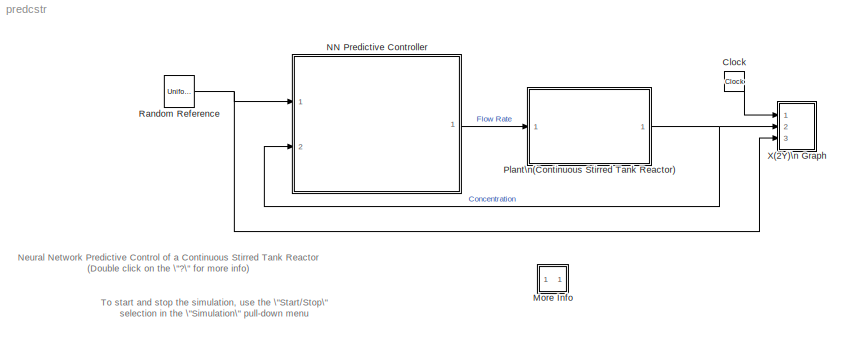
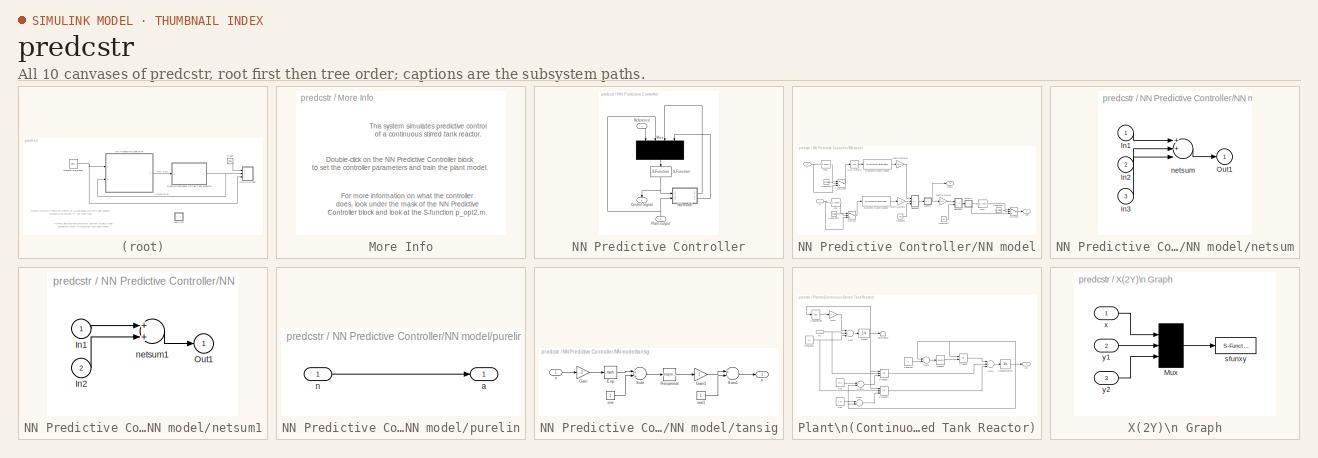
[diagram: thumbnail index - all 10 canvases of the model, root first then tree order]
MODEL predcstr
KIND model
BLOCK [Clock] Clock
  SID = 1
BLOCK [SubSystem] More Info
  Ports = []
  RequestExecContextInheritance = off
  SID = 2
  Variant = off
BLOCK [SubSystem] NN Predictive Controller
  OpenFcn = nncontrolutil('nnpredict','',gcbh,gcb);
  Ports = [2, 1]
  RequestExecContextInheritance = off
  SID = 7
  Variant = off
BLOCK [Outport] NN Predictive Controller/Control Signal
  IconDisplay = Port number
  SID = 59
BLOCK [Mux] NN Predictive Controller/Mux
  DisplayOption = signals
  Ports = [4, 1]
  SID = 10
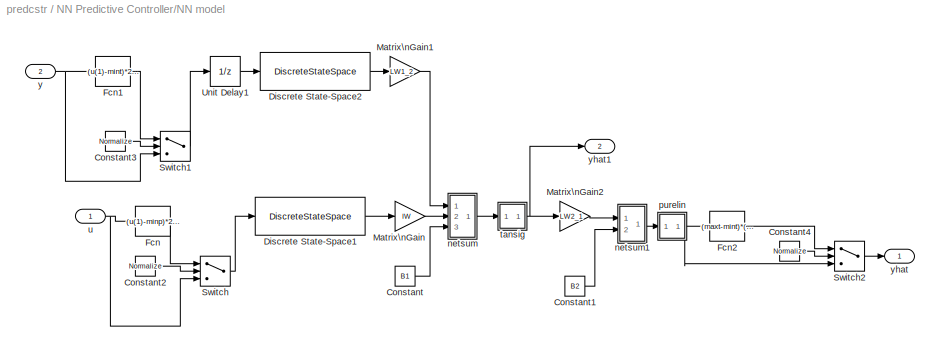
BLOCK [SubSystem] NN Predictive Controller/NN model
  Ports = [2, 2]
  RequestExecContextInheritance = off
  SID = 11
  Variant = off
BLOCK [Constant] NN Predictive Controller/NN model/Constant
  SID = 14
  Value = B1
BLOCK [Constant] NN Predictive Controller/NN model/Constant1
  SID = 15
  Value = B2
BLOCK [Constant] NN Predictive Controller/NN model/Constant2
  SID = 16
  Value = Normalize
BLOCK [Constant] NN Predictive Controller/NN model/Constant3
  SID = 17
  Value = Normalize
BLOCK [Constant] NN Predictive Controller/NN model/Constant4
  SID = 18
  Value = Normalize
BLOCK [DiscreteStateSpace] NN Predictive Controller/NN model/Discrete State-Space1
  A = [0 zeros(1,Ni-2);eye(Ni-2,Ni-1)]
  B = [zeros(double(Ni==1));eye(Ni-1,1)]
  C = [0 zeros(1,Ni-2);eye(Ni-1,Ni-1)]
  D = eye(Ni,1)
  SID = 19
  SampleTime = Ts
BLOCK [DiscreteStateSpace] NN Predictive Controller/NN model/Discrete State-Space2
  A = [0 zeros(1,Nj-2);eye(Nj-2,Nj-1)]
  B = [zeros(double(Nj==1));eye(Nj-1,1)]
  C = [0 zeros(1,Nj-2);eye(Nj-1,Nj-1)]
  D = eye(Nj,1)
  SID = 20
  SampleTime = Ts
BLOCK [Fcn] NN Predictive Controller/NN model/Fcn
  Expr = (u(1)-minp)*2/(maxp-minp) - 1
  SID = 21
BLOCK [Fcn] NN Predictive Controller/NN model/Fcn1
  Expr = (u(1)-mint)*2/(maxt-mint) - 1
  SID = 22
BLOCK [Fcn] NN Predictive Controller/NN model/Fcn2
  Expr = (maxt-mint)*(u(1)+1)/2 + mint
  SID = 23
BLOCK [Gain] NN Predictive Controller/NN model/Matrix\nGain
  Gain = IW
  Multiplication = Matrix(K*u)
  SID = 24
BLOCK [Gain] NN Predictive Controller/NN model/Matrix\nGain1
  Gain = LW1_2
  Multiplication = Matrix(K*u)
  SID = 25
BLOCK [Gain] NN Predictive Controller/NN model/Matrix\nGain2
  Gain = LW2_1
  Multiplication = Matrix(K*u)
  SID = 26
BLOCK [Switch] NN Predictive Controller/NN model/Switch
  SID = 27
  Threshold = 0.5
  ZeroCross = off
BLOCK [Switch] NN Predictive Controller/NN model/Switch1
  SID = 28
  Threshold = 0.5
  ZeroCross = off
BLOCK [Switch] NN Predictive Controller/NN model/Switch2
  SID = 29
  Threshold = 0.5
  ZeroCross = off
BLOCK [UnitDelay] NN Predictive Controller/NN model/Unit Delay1
  SID = 30
  SampleTime = Ts
BLOCK [SubSystem] NN Predictive Controller/NN model/netsum
  Ports = [3, 1]
  RequestExecContextInheritance = off
  SID = 31
  Variant = off
BLOCK [Inport] NN Predictive Controller/NN model/netsum/In1
  IconDisplay = Port number
  SID = 32
BLOCK [Inport] NN Predictive Controller/NN model/netsum/In2
  IconDisplay = Port number
  Port = 2
  SID = 33
BLOCK [Inport] NN Predictive Controller/NN model/netsum/In3
  IconDisplay = Port number
  Port = 3
  SID = 34
BLOCK [Outport] NN Predictive Controller/NN model/netsum/Out1
  IconDisplay = Port number
  SID = 36
BLOCK [Sum] NN Predictive Controller/NN model/netsum/netsum
  Inputs = 3
  Ports = [3, 1]
  SID = 35
BLOCK [SubSystem] NN Predictive Controller/NN model/netsum1
  Ports = [2, 1]
  RequestExecContextInheritance = off
  SID = 37
  Variant = off
BLOCK [Inport] NN Predictive Controller/NN model/netsum1/In1
  IconDisplay = Port number
  SID = 38
BLOCK [Inport] NN Predictive Controller/NN model/netsum1/In2
  IconDisplay = Port number
  Port = 2
  SID = 39
BLOCK [Outport] NN Predictive Controller/NN model/netsum1/Out1
  IconDisplay = Port number
  SID = 41
BLOCK [Sum] NN Predictive Controller/NN model/netsum1/netsum1
  Inputs = 2
  Ports = [2, 1]
  SID = 40
BLOCK [SubSystem] NN Predictive Controller/NN model/purelin
  Ports = [1, 1]
  RequestExecContextInheritance = off
  SID = 42
  Variant = off
BLOCK [Outport] NN Predictive Controller/NN model/purelin/a
  IconDisplay = Port number
  SID = 44
BLOCK [Inport] NN Predictive Controller/NN model/purelin/n
  IconDisplay = Port number
  SID = 43
BLOCK [SubSystem] NN Predictive Controller/NN model/tansig
  Ports = [1, 1]
  RequestExecContextInheritance = off
  SID = 45
  Variant = off
BLOCK [Math] NN Predictive Controller/NN model/tansig/Exp
  Ports = [1, 1]
  SID = 47
BLOCK [Gain] NN Predictive Controller/NN model/tansig/Gain
  Gain = -2
  SID = 48
BLOCK [Gain] NN Predictive Controller/NN model/tansig/Gain1
  Gain = 2
  SID = 49
BLOCK [Math] NN Predictive Controller/NN model/tansig/Reciprocal
  Operator = reciprocal
  Ports = [1, 1]
  SID = 50
BLOCK [Sum] NN Predictive Controller/NN model/tansig/Sum
  Ports = [2, 1]
  SID = 51
BLOCK [Sum] NN Predictive Controller/NN model/tansig/Sum1
  Inputs = +-
  Ports = [2, 1]
  SID = 52
BLOCK [Outport] NN Predictive Controller/NN model/tansig/a
  IconDisplay = Port number
  SID = 55
BLOCK [Inport] NN Predictive Controller/NN model/tansig/n
  IconDisplay = Port number
  SID = 46
BLOCK [Constant] NN Predictive Controller/NN model/tansig/one
  SID = 53
BLOCK [Constant] NN Predictive Controller/NN model/tansig/one1
  SID = 54
BLOCK [Inport] NN Predictive Controller/NN model/u
  IconDisplay = Port number
  SID = 12
BLOCK [Inport] NN Predictive Controller/NN model/y
  IconDisplay = Port number
  Port = 2
  SID = 13
BLOCK [Outport] NN Predictive Controller/NN model/yhat
  IconDisplay = Port number
  SID = 56
BLOCK [Outport] NN Predictive Controller/NN model/yhat1
  IconDisplay = Port number
  Port = 2
  SID = 57
BLOCK [Inport] NN Predictive Controller/Plant output
  IconDisplay = Port number
  Port = 2
  SID = 9
BLOCK [Inport] NN Predictive Controller/Reference
  IconDisplay = Port number
  SID = 8
BLOCK [S-Function] NN Predictive Controller/S-Function
  EnableBusSupport = off
  FunctionName = predopt
  Parameters = N2,Ts,Nu,maxiter,csrchfun,rho,alpha,S1,IW,LW1_2,LW2_1,B1,B2,Ni,Nj,min_i,max_i,minp,maxp,mint,maxt,Normalize
  Ports = [1, 1]
  SFunctionDeploymentMode = off
  SID = 58
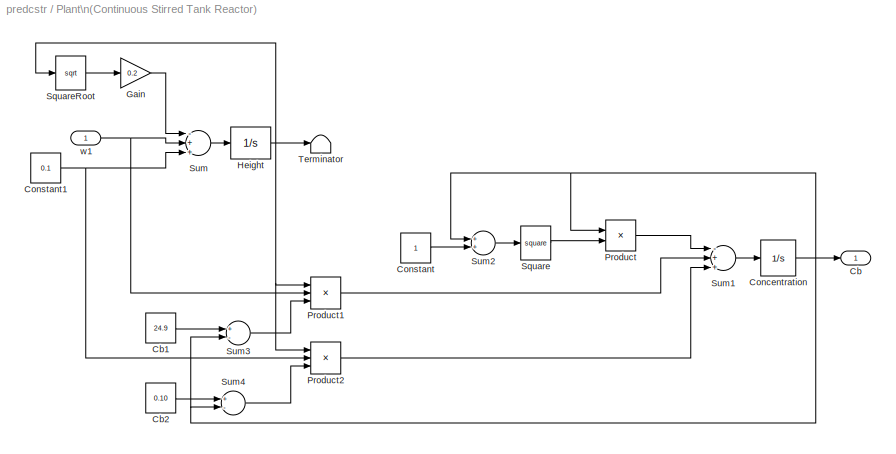
BLOCK [SubSystem] Plant\n(Continuous Stirred Tank Reactor)
  Ports = [1, 1]
  RequestExecContextInheritance = off
  SID = 60
  Variant = off
BLOCK [Outport] Plant\n(Continuous Stirred Tank Reactor)/Cb
  IconDisplay = Port number
  SID = 80
BLOCK [Constant] Plant\n(Continuous Stirred Tank Reactor)/Cb1
  SID = 62
  Value = 24.9
BLOCK [Constant] Plant\n(Continuous Stirred Tank Reactor)/Cb2
  SID = 63
  Value = 0.10
BLOCK [Integrator] Plant\n(Continuous Stirred Tank Reactor)/Concentration
  InitialCondition = 22
  LowerSaturationLimit = 0
  Ports = [1, 1]
  SID = 64
  ZeroCross = off
BLOCK [Constant] Plant\n(Continuous Stirred Tank Reactor)/Constant
  SID = 65
BLOCK [Constant] Plant\n(Continuous Stirred Tank Reactor)/Constant1
  SID = 66
  Value = 0.1
BLOCK [Gain] Plant\n(Continuous Stirred Tank Reactor)/Gain
  Gain = 0.2
  SID = 67
BLOCK [Integrator] Plant\n(Continuous Stirred Tank Reactor)/Height
  InitialCondition = 30
  LimitOutput = on
  LowerSaturationLimit = 1
  Ports = [1, 1]
  SID = 68
  ZeroCross = off
BLOCK [Product] Plant\n(Continuous Stirred Tank Reactor)/Product
  Inputs = */
  Ports = [2, 1]
  RndMeth = Floor
  SID = 69
BLOCK [Product] Plant\n(Continuous Stirred Tank Reactor)/Product1
  Inputs = /**
  Ports = [3, 1]
  RndMeth = Floor
  SID = 70
BLOCK [Product] Plant\n(Continuous Stirred Tank Reactor)/Product2
  Inputs = /**
  Ports = [3, 1]
  RndMeth = Floor
  SID = 71
BLOCK [Math] Plant\n(Continuous Stirred Tank Reactor)/Square
  Operator = square
  Ports = [1, 1]
  SID = 72
BLOCK [Math] Plant\n(Continuous Stirred Tank Reactor)/SquareRoot
  Operator = sqrt
  Ports = [1, 1]
  SID = 73
BLOCK [Sum] Plant\n(Continuous Stirred Tank Reactor)/Sum
  Inputs = -++
  Ports = [3, 1]
  SID = 74
BLOCK [Sum] Plant\n(Continuous Stirred Tank Reactor)/Sum1
  Inputs = -++
  Ports = [3, 1]
  SID = 75
BLOCK [Sum] Plant\n(Continuous Stirred Tank Reactor)/Sum2
  Ports = [2, 1]
  SID = 76
BLOCK [Sum] Plant\n(Continuous Stirred Tank Reactor)/Sum3
  Inputs = +-
  Ports = [2, 1]
  SID = 77
BLOCK [Sum] Plant\n(Continuous Stirred Tank Reactor)/Sum4
  Inputs = +-
  Ports = [2, 1]
  SID = 78
BLOCK [Terminator] Plant\n(Continuous Stirred Tank Reactor)/Terminator
  SID = 79
BLOCK [Inport] Plant\n(Continuous Stirred Tank Reactor)/w1
  IconDisplay = Port number
  SID = 61
BLOCK [UniformRandomNumber] Random Reference
  Maximum = 23
  Minimum = 20
  SID = 81
  SampleTime = 20
  Seed = round(now)
BLOCK [SubSystem] X(2Y)\n Graph
  CopyFcn = sfunxy2([],[],[],'CopyBlock')
  DeleteFcn = sfunxy2([],[],[],'DeleteBlock')
  LoadFcn = sfunxy2([],[],[],'LoadBlock')
  NameChangeFcn = sfunxy2([],[],[],'NameChange')
  Ports = [3]
  RequestExecContextInheritance = off
  SID = 82
  StartFcn = sfunxy2([],[],[],'Start')
  StopFcn = sfunxy2([],[],[],'Stop')
  Variant = off
BLOCK [Mux] X(2Y)\n Graph/Mux
  Inputs = 3
  Ports = [3, 1]
  SID = 82:4
BLOCK [S-Function] X(2Y)\n Graph/sfunxy
  EnableBusSupport = off
  FunctionName = sfunxy2
  Parameters = [xmin xmax ymin ymax], st
  Ports = [1]
  SFunctionDeploymentMode = off
  SID = 82:5
BLOCK [Inport] X(2Y)\n Graph/x
  IconDisplay = Port number
  SID = 82:1
BLOCK [Inport] X(2Y)\n Graph/y1
  IconDisplay = Port number
  Port = 2
  SID = 82:2
BLOCK [Inport] X(2Y)\n Graph/y2
  IconDisplay = Port number
  Port = 3
  SID = 82:3
ANNOTATION (root): Neural Network Predictive Control of a Continuous Stirred Tank Reactor\n(Double click on the \"?\" for more info)
ANNOTATION (root): To start and stop the simulation, use the \"Start/Stop\"\nselection in the \"Simulation\" pull-down menu
ANNOTATION More Info: Double-click on the NN Predictive Controller block\nto set the controller parameters and train the plant model.
ANNOTATION More Info: For more information on what the controller \ndoes, look under the mask of the NN Predictive \nController block and look at the S-function p_opt2.m.
ANNOTATION More Info: This system simulates predictive control\nof a continuous stirred tank reactor.
LINE Clock:1 -> X(2Y)\n Graph:1
LINE NN Predictive Controller/Mux:1 -> NN Predictive Controller/S-Function:1
LINE NN Predictive Controller/NN model/Constant1:1 -> NN Predictive Controller/NN model/netsum1:2
LINE NN Predictive Controller/NN model/Constant2:1 -> NN Predictive Controller/NN model/Switch:2
LINE NN Predictive Controller/NN model/Constant3:1 -> NN Predictive Controller/NN model/Switch1:2
LINE NN Predictive Controller/NN model/Constant4:1 -> NN Predictive Controller/NN model/Switch2:2
LINE NN Predictive Controller/NN model/Constant:1 -> NN Predictive Controller/NN model/netsum:3
LINE NN Predictive Controller/NN model/Discrete State-Space1:1 -> NN Predictive Controller/NN model/Matrix\nGain:1
LINE NN Predictive Controller/NN model/Discrete State-Space2:1 -> NN Predictive Controller/NN model/Matrix\nGain1:1
LINE NN Predictive Controller/NN model/Fcn1:1 -> NN Predictive Controller/NN model/Switch1:1
LINE NN Predictive Controller/NN model/Fcn2:1 -> NN Predictive Controller/NN model/Switch2:1
LINE NN Predictive Controller/NN model/Fcn:1 -> NN Predictive Controller/NN model/Switch:1
LINE NN Predictive Controller/NN model/Matrix\nGain1:1 -> NN Predictive Controller/NN model/netsum:1
LINE NN Predictive Controller/NN model/Matrix\nGain2:1 -> NN Predictive Controller/NN model/netsum1:1
LINE NN Predictive Controller/NN model/Matrix\nGain:1 -> NN Predictive Controller/NN model/netsum:2
LINE NN Predictive Controller/NN model/Switch1:1 -> NN Predictive Controller/NN model/Unit Delay1:1
LINE NN Predictive Controller/NN model/Switch2:1 -> NN Predictive Controller/NN model/yhat:1
LINE NN Predictive Controller/NN model/Switch:1 -> NN Predictive Controller/NN model/Discrete State-Space1:1
LINE NN Predictive Controller/NN model/Unit Delay1:1 -> NN Predictive Controller/NN model/Discrete State-Space2:1
LINE NN Predictive Controller/NN model/netsum/In1:1 -> NN Predictive Controller/NN model/netsum/netsum:1
LINE NN Predictive Controller/NN model/netsum/In2:1 -> NN Predictive Controller/NN model/netsum/netsum:2
LINE NN Predictive Controller/NN model/netsum/In3:1 -> NN Predictive Controller/NN model/netsum/netsum:3
LINE NN Predictive Controller/NN model/netsum/netsum:1 -> NN Predictive Controller/NN model/netsum/Out1:1
LINE NN Predictive Controller/NN model/netsum1/In1:1 -> NN Predictive Controller/NN model/netsum1/netsum1:1
LINE NN Predictive Controller/NN model/netsum1/In2:1 -> NN Predictive Controller/NN model/netsum1/netsum1:2
LINE NN Predictive Controller/NN model/netsum1/netsum1:1 -> NN Predictive Controller/NN model/netsum1/Out1:1
LINE NN Predictive Controller/NN model/netsum1:1 -> NN Predictive Controller/NN model/purelin:1
LINE NN Predictive Controller/NN model/netsum:1 -> NN Predictive Controller/NN model/tansig:1
LINE NN Predictive Controller/NN model/purelin/n:1 -> NN Predictive Controller/NN model/purelin/a:1
NET NN Predictive Controller/NN model/purelin:1 -> NN Predictive Controller/NN model/Fcn2:1, NN Predictive Controller/NN model/Switch2:3
LINE NN Predictive Controller/NN model/tansig/Exp:1 -> NN Predictive Controller/NN model/tansig/Sum:1
LINE NN Predictive Controller/NN model/tansig/Gain1:1 -> NN Predictive Controller/NN model/tansig/Sum1:1
LINE NN Predictive Controller/NN model/tansig/Gain:1 -> NN Predictive Controller/NN model/tansig/Exp:1
LINE NN Predictive Controller/NN model/tansig/Reciprocal:1 -> NN Predictive Controller/NN model/tansig/Gain1:1
LINE NN Predictive Controller/NN model/tansig/Sum1:1 -> NN Predictive Controller/NN model/tansig/a:1
LINE NN Predictive Controller/NN model/tansig/Sum:1 -> NN Predictive Controller/NN model/tansig/Reciprocal:1
LINE NN Predictive Controller/NN model/tansig/n:1 -> NN Predictive Controller/NN model/tansig/Gain:1
LINE NN Predictive Controller/NN model/tansig/one1:1 -> NN Predictive Controller/NN model/tansig/Sum1:2
LINE NN Predictive Controller/NN model/tansig/one:1 -> NN Predictive Controller/NN model/tansig/Sum:2
NET NN Predictive Controller/NN model/tansig:1 -> NN Predictive Controller/NN model/Matrix\nGain2:1, NN Predictive Controller/NN model/yhat1:1
NET NN Predictive Controller/NN model/u:1 -> NN Predictive Controller/NN model/Fcn:1, NN Predictive Controller/NN model/Switch:3
NET NN Predictive Controller/NN model/y:1 -> NN Predictive Controller/NN model/Fcn1:1, NN Predictive Controller/NN model/Switch1:3
LINE NN Predictive Controller/NN model:1 -> NN Predictive Controller/Mux:3
LINE NN Predictive Controller/NN model:2 -> NN Predictive Controller/Mux:4
NET NN Predictive Controller/Plant output:1 -> NN Predictive Controller/Mux:2, NN Predictive Controller/NN model:2
LINE NN Predictive Controller/Reference:1 -> NN Predictive Controller/Mux:1
NET NN Predictive Controller/S-Function:1 -> NN Predictive Controller/Control Signal:1, NN Predictive Controller/NN model:1
LINE NN Predictive Controller:1 -> Plant\n(Continuous Stirred Tank Reactor):1
LINE Plant\n(Continuous Stirred Tank Reactor)/Cb1:1 -> Plant\n(Continuous Stirred Tank Reactor)/Sum3:1
LINE Plant\n(Continuous Stirred Tank Reactor)/Cb2:1 -> Plant\n(Continuous Stirred Tank Reactor)/Sum4:1
NET Plant\n(Continuous Stirred Tank Reactor)/Concentration:1 -> Plant\n(Continuous Stirred Tank Reactor)/Cb:1, Plant\n(Continuous Stirred Tank Reactor)/Product:1, Plant\n(Continuous Stirred Tank Reactor)/Sum2:1, Plant\n(Continuous Stirred Tank Reactor)/Sum3:2, Plant\n(Continuous Stirred Tank Reactor)/Sum4:2
NET Plant\n(Continuous Stirred Tank Reactor)/Constant1:1 -> Plant\n(Continuous Stirred Tank Reactor)/Product2:2, Plant\n(Continuous Stirred Tank Reactor)/Sum:3
LINE Plant\n(Continuous Stirred Tank Reactor)/Constant:1 -> Plant\n(Continuous Stirred Tank Reactor)/Sum2:2
LINE Plant\n(Continuous Stirred Tank Reactor)/Gain:1 -> Plant\n(Continuous Stirred Tank Reactor)/Sum:1
NET Plant\n(Continuous Stirred Tank Reactor)/Height:1 -> Plant\n(Continuous Stirred Tank Reactor)/Product1:1, Plant\n(Continuous Stirred Tank Reactor)/Product2:1, Plant\n(Continuous Stirred Tank Reactor)/SquareRoot:1, Plant\n(Continuous Stirred Tank Reactor)/Terminator:1
LINE Plant\n(Continuous Stirred Tank Reactor)/Product1:1 -> Plant\n(Continuous Stirred Tank Reactor)/Sum1:2
LINE Plant\n(Continuous Stirred Tank Reactor)/Product2:1 -> Plant\n(Continuous Stirred Tank Reactor)/Sum1:3
LINE Plant\n(Continuous Stirred Tank Reactor)/Product:1 -> Plant\n(Continuous Stirred Tank Reactor)/Sum1:1
LINE Plant\n(Continuous Stirred Tank Reactor)/Square:1 -> Plant\n(Continuous Stirred Tank Reactor)/Product:2
LINE Plant\n(Continuous Stirred Tank Reactor)/SquareRoot:1 -> Plant\n(Continuous Stirred Tank Reactor)/Gain:1
LINE Plant\n(Continuous Stirred Tank Reactor)/Sum1:1 -> Plant\n(Continuous Stirred Tank Reactor)/Concentration:1
LINE Plant\n(Continuous Stirred Tank Reactor)/Sum2:1 -> Plant\n(Continuous Stirred Tank Reactor)/Square:1
LINE Plant\n(Continuous Stirred Tank Reactor)/Sum3:1 -> Plant\n(Continuous Stirred Tank Reactor)/Product1:3
LINE Plant\n(Continuous Stirred Tank Reactor)/Sum4:1 -> Plant\n(Continuous Stirred Tank Reactor)/Product2:3
LINE Plant\n(Continuous Stirred Tank Reactor)/Sum:1 -> Plant\n(Continuous Stirred Tank Reactor)/Height:1
NET Plant\n(Continuous Stirred Tank Reactor)/w1:1 -> Plant\n(Continuous Stirred Tank Reactor)/Product1:2, Plant\n(Continuous Stirred Tank Reactor)/Sum:2
NET Plant\n(Continuous Stirred Tank Reactor):1 -> NN Predictive Controller:2, X(2Y)\n Graph:2
NET Random Reference:1 -> NN Predictive Controller:1, X(2Y)\n Graph:3
LINE X(2Y)\n Graph/Mux:1 -> X(2Y)\n Graph/sfunxy:1
LINE X(2Y)\n Graph/x:1 -> X(2Y)\n Graph/Mux:1
LINE X(2Y)\n Graph/y1:1 -> X(2Y)\n Graph/Mux:2
LINE X(2Y)\n Graph/y2:1 -> X(2Y)\n Graph/Mux:3
note: NET lines group one-source signal fan-out (src -> all destinations, sorted); 1:1 wires keep LINE
